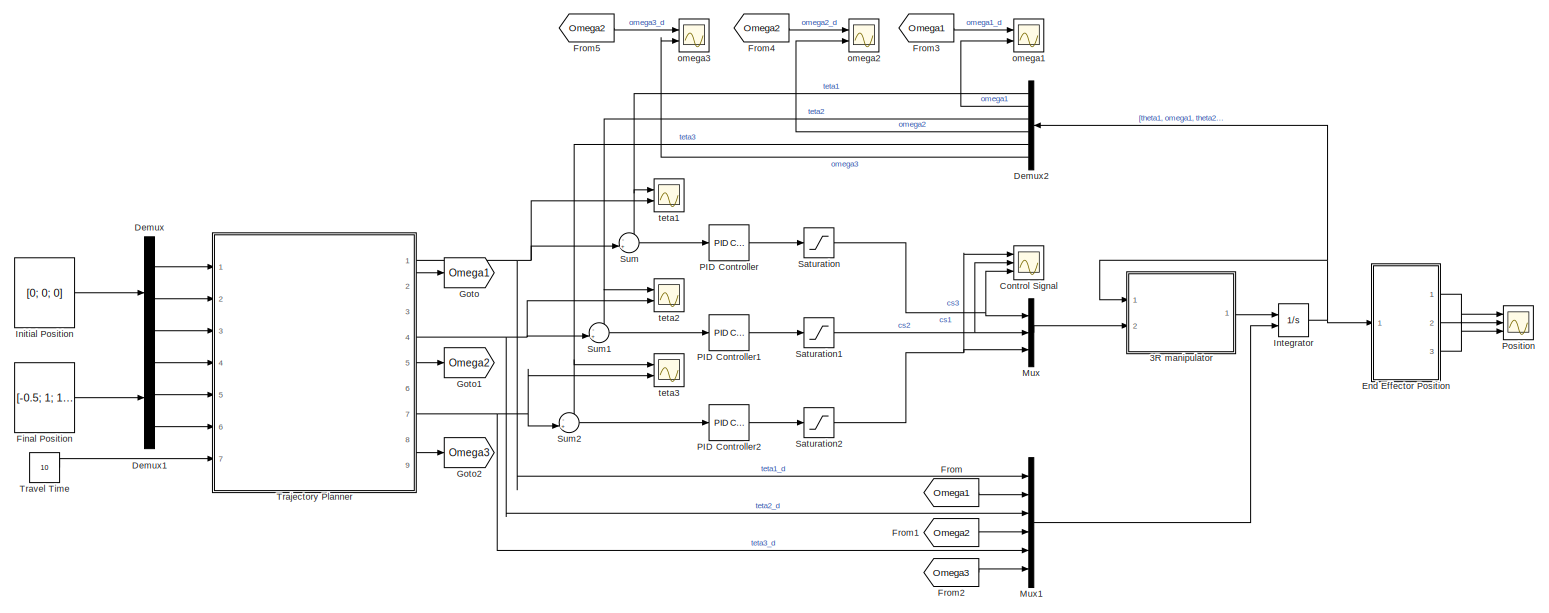
[diagram: root canvas - part 1/1, most of the canvas]
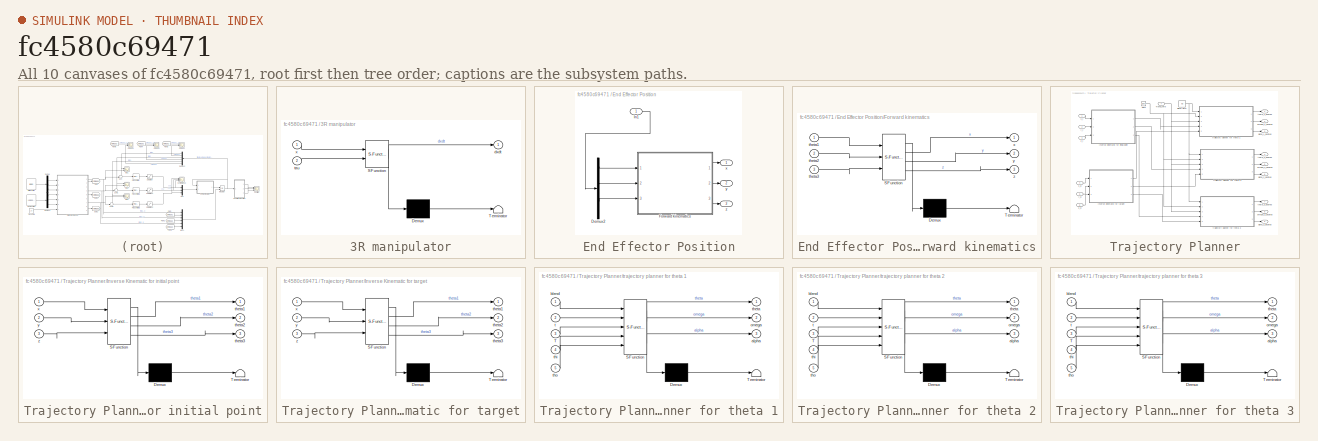
[diagram: thumbnail index - all 10 canvases of the model, root first then tree order]
MODEL slx_fc4580c69471
KIND model
CONFIG AbsTol = auto
CONFIG EnableMultiTasking = off
CONFIG FixedStep = auto
CONFIG MaxStep = auto
CONFIG MinStep = auto
CONFIG RelTol = 1e-3
CONFIG SampleTimeConstraint = Unconstrained
CONFIG Solver = VariableStepAuto
CONFIG SolverName = VariableStepAuto
CONFIG StartTime = 0.0
CONFIG StopTime = 10
BLOCK [SubSystem] 3R manipulator
  ErrorFcn = Stateflow.Translate.translate
  PermitHierarchicalResolution = ExplicitOnly
  Ports = [2, 1]
  RequestExecContextInheritance = off
  SFBlockType = MATLAB Function
  TreatAsAtomicUnit = on
BLOCK [Demux] 3R manipulator/ Demux 
  Outputs = 1
  Ports = [1, 1]
BLOCK [S-Function] 3R manipulator/ SFunction 
  EnableBusSupport = on
  FunctionName = sf_sfun
  PortCounts = [2 2]
  Ports = [2, 2]
  SFcnIsStateOwnerBlock = off
  SFunctionDeploymentMode = off
  Tag = Stateflow S-Function 2
BLOCK [Terminator] 3R manipulator/ Terminator 
BLOCK [Outport] 3R manipulator/dxdt
BLOCK [Inport] 3R manipulator/tau
  Port = 2
BLOCK [Inport] 3R manipulator/x
BLOCK [Scope] Control Signal
  Floating = off
  NumInputPorts = 3
  Ports = [3]
  ScopeSpecificationString = Simulink.scopes.TimeScopeBlockCfg('CurrentConfiguration', extmgr.ConfigurationSet(extmgr.Configuration('Core','General UI',true),extmgr.Configuration('Core','Source UI',true),extmgr.Configuration('Sources','WiredSimulink',true,'DataLoggingVariableName','ScopeData3'),extmgr.Configuration('Visuals','Time Domain',true,'SerializedDisplays',{struct('MinYLimReal','-12.5624','MaxYLimReal','3.83306','YLab...<+1425ch>
BLOCK [Demux] Demux
  Outputs = 3
  Ports = [1, 3]
BLOCK [Demux] Demux1
  Outputs = 3
  Ports = [1, 3]
BLOCK [Demux] Demux2
  NameLocation = top
  Outputs = 6
  Ports = [1, 6]
BLOCK [SubSystem] End Effector Position
  Ports = [1, 3]
  RequestExecContextInheritance = off
BLOCK [Demux] End Effector Position/Demux2
  Outputs = 6
  Ports = [1, 6]
BLOCK [SubSystem] End Effector Position/Forward kinematics
  ErrorFcn = Stateflow.Translate.translate
  PermitHierarchicalResolution = ExplicitOnly
  Ports = [3, 3]
  RequestExecContextInheritance = off
  SFBlockType = MATLAB Function
  TreatAsAtomicUnit = on
BLOCK [Demux] End Effector Position/Forward kinematics/ Demux 
  Outputs = 1
  Ports = [1, 1]
BLOCK [S-Function] End Effector Position/Forward kinematics/ SFunction 
  EnableBusSupport = on
  FunctionName = sf_sfun
  PortCounts = [3 4]
  Ports = [3, 4]
  SFcnIsStateOwnerBlock = off
  SFunctionDeploymentMode = off
  Tag = Stateflow S-Function 7
BLOCK [Terminator] End Effector Position/Forward kinematics/ Terminator 
BLOCK [Inport] End Effector Position/Forward kinematics/theta1
BLOCK [Inport] End Effector Position/Forward kinematics/theta2
  Port = 2
BLOCK [Inport] End Effector Position/Forward kinematics/theta3
  Port = 3
BLOCK [Outport] End Effector Position/Forward kinematics/x
BLOCK [Outport] End Effector Position/Forward kinematics/y
  Port = 2
BLOCK [Outport] End Effector Position/Forward kinematics/z
  Port = 3
BLOCK [Inport] End Effector Position/In1
BLOCK [Outport] End Effector Position/x
BLOCK [Outport] End Effector Position/y
  Port = 2
BLOCK [Outport] End Effector Position/z
  Port = 3
BLOCK [Constant] Final Position
  Value = [-0.5; 1; 1.5]
  VectorParams1D = off
BLOCK [From] From
  GotoTag = Omega1
BLOCK [From] From1
  GotoTag = Omega2
BLOCK [From] From2
  GotoTag = Omega3
BLOCK [From] From3
  GotoTag = Omega1
BLOCK [From] From4
  GotoTag = Omega2
BLOCK [From] From5
  GotoTag = Omega2
BLOCK [Goto] Goto
  GotoTag = Omega1
BLOCK [Goto] Goto1
  GotoTag = Omega2
BLOCK [Goto] Goto2
  GotoTag = Omega3
BLOCK [Constant] Initial Position
  Value = [0; 0; 0]
  VectorParams1D = off
BLOCK [Integrator] Integrator
  InitialConditionSource = external
  Ports = [2, 1]
BLOCK [Mux] Mux
  DisplayOption = bar
  Inputs = 3
  Ports = [3, 1]
BLOCK [Mux] Mux1
  DisplayOption = bar
  Inputs = 6
  Ports = [6, 1]
BLOCK [Reference] PID Controller  REF=simulink/Continuous/PID Controller
  Ports = [1, 1]
  SourceBlock = simulink/Continuous/PID Controller
  SourceProductBaseCode = SL
  SourceType = PID 1dof
BLOCK [Reference] PID Controller1  REF=simulink/Continuous/PID Controller
  Ports = [1, 1]
  SourceBlock = simulink/Continuous/PID Controller
  SourceProductBaseCode = SL
  SourceType = PID 1dof
BLOCK [Reference] PID Controller2  REF=simulink/Continuous/PID Controller
  Ports = [1, 1]
  SourceBlock = simulink/Continuous/PID Controller
  SourceProductBaseCode = SL
  SourceType = PID 1dof
BLOCK [Scope] Position
  Floating = off
  NumInputPorts = 3
  Ports = [3]
  ScopeSpecificationString = Simulink.scopes.TimeScopeBlockCfg('CurrentConfiguration', extmgr.ConfigurationSet(extmgr.Configuration('Core','General UI',true),extmgr.Configuration('Core','Source UI',true),extmgr.Configuration('Sources','WiredSimulink',true),extmgr.Configuration('Visuals','Time Domain',true,'SerializedDisplays',{struct('MinYLimReal','-0.76512','MaxYLimReal','1.74834','YLabelReal','','MinYLimMag','0.00000','MaxY...<+1429ch>
BLOCK [Saturate] Saturation
  LowerLimit = -15
  UpperLimit = 15
BLOCK [Saturate] Saturation1
  LowerLimit = -15
  UpperLimit = 15
BLOCK [Saturate] Saturation2
  LowerLimit = -15
  UpperLimit = 15
BLOCK [Sum] Sum
  Inputs = -+|
  Ports = [2, 1]
BLOCK [Sum] Sum1
  Inputs = -+|
  Ports = [2, 1]
BLOCK [Sum] Sum2
  Inputs = -+|
  Ports = [2, 1]
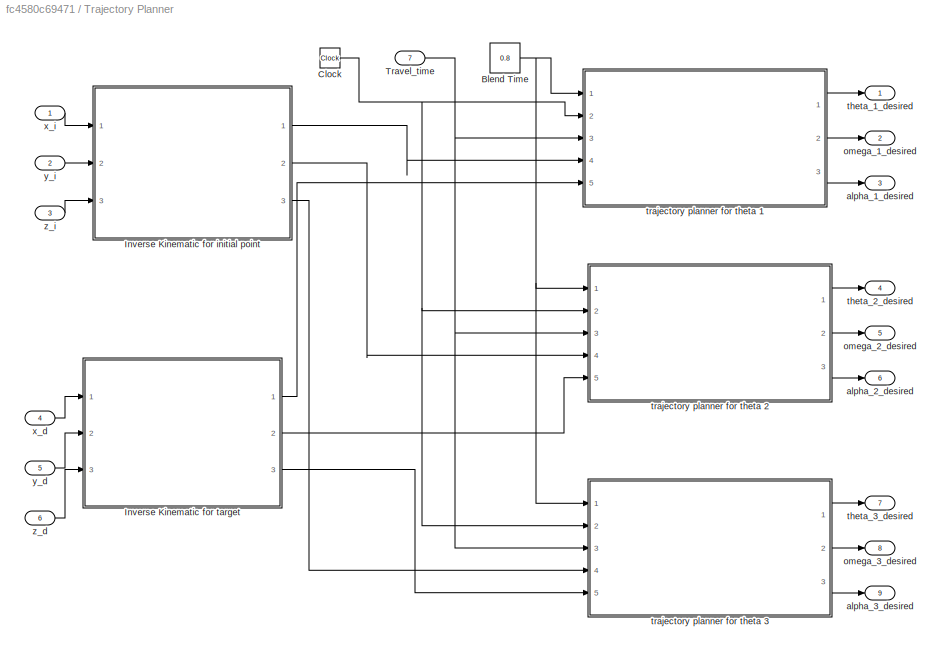
BLOCK [SubSystem] Trajectory Planner
  Ports = [7, 9]
  RequestExecContextInheritance = off
BLOCK [Constant] Trajectory Planner/Blend Time
  Value = 0.8
BLOCK [Clock] Trajectory Planner/Clock
BLOCK [SubSystem] Trajectory Planner/Inverse Kinematic for initial point
  ErrorFcn = Stateflow.Translate.translate
  PermitHierarchicalResolution = ExplicitOnly
  Ports = [3, 3]
  RequestExecContextInheritance = off
  SFBlockType = MATLAB Function
  TreatAsAtomicUnit = on
BLOCK [Demux] Trajectory Planner/Inverse Kinematic for initial point/ Demux 
  Outputs = 1
  Ports = [1, 1]
BLOCK [S-Function] Trajectory Planner/Inverse Kinematic for initial point/ SFunction 
  EnableBusSupport = on
  FunctionName = sf_sfun
  PortCounts = [3 4]
  Ports = [3, 4]
  SFcnIsStateOwnerBlock = off
  SFunctionDeploymentMode = off
  Tag = Stateflow S-Function 1
BLOCK [Terminator] Trajectory Planner/Inverse Kinematic for initial point/ Terminator 
BLOCK [Outport] Trajectory Planner/Inverse Kinematic for initial point/theta1
BLOCK [Outport] Trajectory Planner/Inverse Kinematic for initial point/theta2
  Port = 2
BLOCK [Outport] Trajectory Planner/Inverse Kinematic for initial point/theta3
  Port = 3
BLOCK [Inport] Trajectory Planner/Inverse Kinematic for initial point/x
BLOCK [Inport] Trajectory Planner/Inverse Kinematic for initial point/y
  Port = 2
BLOCK [Inport] Trajectory Planner/Inverse Kinematic for initial point/z
  Port = 3
BLOCK [SubSystem] Trajectory Planner/Inverse Kinematic for target
  ErrorFcn = Stateflow.Translate.translate
  PermitHierarchicalResolution = ExplicitOnly
  Ports = [3, 3]
  RequestExecContextInheritance = off
  SFBlockType = MATLAB Function
  TreatAsAtomicUnit = on
BLOCK [Demux] Trajectory Planner/Inverse Kinematic for target/ Demux 
  Outputs = 1
  Ports = [1, 1]
BLOCK [S-Function] Trajectory Planner/Inverse Kinematic for target/ SFunction 
  EnableBusSupport = on
  FunctionName = sf_sfun
  PortCounts = [3 4]
  Ports = [3, 4]
  SFcnIsStateOwnerBlock = off
  SFunctionDeploymentMode = off
  Tag = Stateflow S-Function 6
BLOCK [Terminator] Trajectory Planner/Inverse Kinematic for target/ Terminator 
BLOCK [Outport] Trajectory Planner/Inverse Kinematic for target/theta1
BLOCK [Outport] Trajectory Planner/Inverse Kinematic for target/theta2
  Port = 2
BLOCK [Outport] Trajectory Planner/Inverse Kinematic for target/theta3
  Port = 3
BLOCK [Inport] Trajectory Planner/Inverse Kinematic for target/x
BLOCK [Inport] Trajectory Planner/Inverse Kinematic for target/y
  Port = 2
BLOCK [Inport] Trajectory Planner/Inverse Kinematic for target/z
  Port = 3
BLOCK [Inport] Trajectory Planner/Travel_time
  Port = 7
BLOCK [Outport] Trajectory Planner/alpha_1_desired
  Port = 3
BLOCK [Outport] Trajectory Planner/alpha_2_desired
  Port = 6
BLOCK [Outport] Trajectory Planner/alpha_3_desired
  Port = 9
BLOCK [Outport] Trajectory Planner/omega_1_desired
  Port = 2
BLOCK [Outport] Trajectory Planner/omega_2_desired
  Port = 5
BLOCK [Outport] Trajectory Planner/omega_3_desired
  Port = 8
BLOCK [Outport] Trajectory Planner/theta_1_desired
BLOCK [Outport] Trajectory Planner/theta_2_desired
  Port = 4
BLOCK [Outport] Trajectory Planner/theta_3_desired
  Port = 7
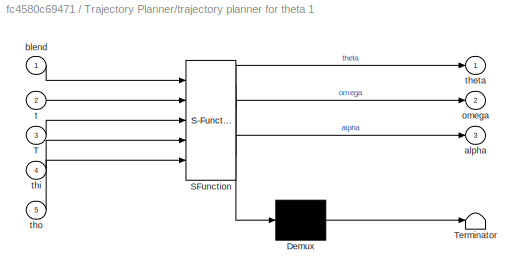
BLOCK [SubSystem] Trajectory Planner/trajectory planner for theta 1
  ErrorFcn = Stateflow.Translate.translate
  PermitHierarchicalResolution = ExplicitOnly
  Ports = [5, 3]
  RequestExecContextInheritance = off
  SFBlockType = MATLAB Function
  TreatAsAtomicUnit = on
BLOCK [Demux] Trajectory Planner/trajectory planner for theta 1/ Demux 
  Outputs = 1
  Ports = [1, 1]
BLOCK [S-Function] Trajectory Planner/trajectory planner for theta 1/ SFunction 
  EnableBusSupport = on
  FunctionName = sf_sfun
  PortCounts = [5 4]
  Ports = [5, 4]
  SFcnIsStateOwnerBlock = off
  SFunctionDeploymentMode = off
  Tag = Stateflow S-Function 3
BLOCK [Terminator] Trajectory Planner/trajectory planner for theta 1/ Terminator 
BLOCK [Inport] Trajectory Planner/trajectory planner for theta 1/T
  Port = 3
BLOCK [Outport] Trajectory Planner/trajectory planner for theta 1/alpha
  Port = 3
BLOCK [Inport] Trajectory Planner/trajectory planner for theta 1/blend
BLOCK [Outport] Trajectory Planner/trajectory planner for theta 1/omega
  Port = 2
BLOCK [Inport] Trajectory Planner/trajectory planner for theta 1/t
  Port = 2
BLOCK [Outport] Trajectory Planner/trajectory planner for theta 1/theta
BLOCK [Inport] Trajectory Planner/trajectory planner for theta 1/thi
  Port = 4
BLOCK [Inport] Trajectory Planner/trajectory planner for theta 1/tho
  Port = 5
BLOCK [SubSystem] Trajectory Planner/trajectory planner for theta 2
  ErrorFcn = Stateflow.Translate.translate
  PermitHierarchicalResolution = ExplicitOnly
  Ports = [5, 3]
  RequestExecContextInheritance = off
  SFBlockType = MATLAB Function
  TreatAsAtomicUnit = on
BLOCK [Demux] Trajectory Planner/trajectory planner for theta 2/ Demux 
  Outputs = 1
  Ports = [1, 1]
BLOCK [S-Function] Trajectory Planner/trajectory planner for theta 2/ SFunction 
  EnableBusSupport = on
  FunctionName = sf_sfun
  PortCounts = [5 4]
  Ports = [5, 4]
  SFcnIsStateOwnerBlock = off
  SFunctionDeploymentMode = off
  Tag = Stateflow S-Function 4
BLOCK [Terminator] Trajectory Planner/trajectory planner for theta 2/ Terminator 
BLOCK [Inport] Trajectory Planner/trajectory planner for theta 2/T
  Port = 3
BLOCK [Outport] Trajectory Planner/trajectory planner for theta 2/alpha
  Port = 3
BLOCK [Inport] Trajectory Planner/trajectory planner for theta 2/blend
BLOCK [Outport] Trajectory Planner/trajectory planner for theta 2/omega
  Port = 2
BLOCK [Inport] Trajectory Planner/trajectory planner for theta 2/t
  Port = 2
BLOCK [Outport] Trajectory Planner/trajectory planner for theta 2/theta
BLOCK [Inport] Trajectory Planner/trajectory planner for theta 2/thi
  Port = 4
BLOCK [Inport] Trajectory Planner/trajectory planner for theta 2/tho
  Port = 5
BLOCK [SubSystem] Trajectory Planner/trajectory planner for theta 3
  ErrorFcn = Stateflow.Translate.translate
  PermitHierarchicalResolution = ExplicitOnly
  Ports = [5, 3]
  RequestExecContextInheritance = off
  SFBlockType = MATLAB Function
  TreatAsAtomicUnit = on
BLOCK [Demux] Trajectory Planner/trajectory planner for theta 3/ Demux 
  Outputs = 1
  Ports = [1, 1]
BLOCK [S-Function] Trajectory Planner/trajectory planner for theta 3/ SFunction 
  EnableBusSupport = on
  FunctionName = sf_sfun
  PortCounts = [5 4]
  Ports = [5, 4]
  SFcnIsStateOwnerBlock = off
  SFunctionDeploymentMode = off
  Tag = Stateflow S-Function 5
BLOCK [Terminator] Trajectory Planner/trajectory planner for theta 3/ Terminator 
BLOCK [Inport] Trajectory Planner/trajectory planner for theta 3/T
  Port = 3
BLOCK [Outport] Trajectory Planner/trajectory planner for theta 3/alpha
  Port = 3
BLOCK [Inport] Trajectory Planner/trajectory planner for theta 3/blend
BLOCK [Outport] Trajectory Planner/trajectory planner for theta 3/omega
  Port = 2
BLOCK [Inport] Trajectory Planner/trajectory planner for theta 3/t
  Port = 2
BLOCK [Outport] Trajectory Planner/trajectory planner for theta 3/theta
BLOCK [Inport] Trajectory Planner/trajectory planner for theta 3/thi
  Port = 4
BLOCK [Inport] Trajectory Planner/trajectory planner for theta 3/tho
  Port = 5
BLOCK [Inport] Trajectory Planner/x_d
  Port = 4
BLOCK [Inport] Trajectory Planner/x_i
BLOCK [Inport] Trajectory Planner/y_d
  Port = 5
BLOCK [Inport] Trajectory Planner/y_i
  Port = 2
BLOCK [Inport] Trajectory Planner/z_d
  Port = 6
BLOCK [Inport] Trajectory Planner/z_i
  Port = 3
BLOCK [Constant] Travel Time 
  Value = 10
BLOCK [Scope] omega1
  Floating = off
  NumInputPorts = 2
  Ports = [2]
  ScopeSpecificationString = Simulink.scopes.TimeScopeBlockCfg('CurrentConfiguration', extmgr.ConfigurationSet(extmgr.Configuration('Core','General UI',true),extmgr.Configuration('Core','Source UI',true),extmgr.Configuration('Sources','WiredSimulink',true,'DataLoggingVariableName','ScopeData1'),extmgr.Configuration('Visuals','Time Domain',true,'SerializedDisplays',{struct('MinYLimReal','-0.02789','MaxYLimReal','0.25103','YLab...<+1411ch>
BLOCK [Scope] omega2
  Floating = off
  NumInputPorts = 2
  Ports = [2]
  ScopeSpecificationString = Simulink.scopes.TimeScopeBlockCfg('CurrentConfiguration', extmgr.ConfigurationSet(extmgr.Configuration('Core','General UI',true),extmgr.Configuration('Core','Source UI',true),extmgr.Configuration('Sources','WiredSimulink',true,'DataLoggingVariableName','ScopeData2'),extmgr.Configuration('Visuals','Time Domain',true,'SerializedDisplays',{struct('MinYLimReal','-0.0127','MaxYLimReal','0.11428','YLabe...<+1409ch>
BLOCK [Scope] omega3
  Floating = off
  NumInputPorts = 2
  Ports = [2]
  ScopeSpecificationString = Simulink.scopes.TimeScopeBlockCfg('CurrentConfiguration', extmgr.ConfigurationSet(extmgr.Configuration('Core','General UI',true),extmgr.Configuration('Core','Source UI',true),extmgr.Configuration('Sources','WiredSimulink',true,'DataLoggingVariableName','ScopeData3'),extmgr.Configuration('Visuals','Time Domain',true,'SerializedDisplays',{struct('MinYLimReal','-0.02159','MaxYLimReal','0.19433','YLab...<+1409ch>
BLOCK [Scope] teta1
  Floating = off
  NumInputPorts = 2
  Ports = [2]
  ScopeSpecificationString = Simulink.scopes.TimeScopeBlockCfg('CurrentConfiguration', extmgr.ConfigurationSet(extmgr.Configuration('Core','General UI',true),extmgr.Configuration('Core','Source UI',true),extmgr.Configuration('Sources','WiredSimulink',true,'DataLoggingVariableName','ScopeData2'),extmgr.Configuration('Visuals','Time Domain',true,'SerializedDisplays',{struct('MinYLimReal','-0.25589','MaxYLimReal','2.30304','YLab...<+1409ch>
BLOCK [Scope] teta2
  Floating = off
  NumInputPorts = 2
  Ports = [2]
  ScopeSpecificationString = Simulink.scopes.TimeScopeBlockCfg('CurrentConfiguration', extmgr.ConfigurationSet(extmgr.Configuration('Core','General UI',true),extmgr.Configuration('Core','Source UI',true),extmgr.Configuration('Sources','WiredSimulink',true,'DataLoggingVariableName','ScopeData1'),extmgr.Configuration('Visuals','Time Domain',true,'SerializedDisplays',{struct('MinYLimReal','-2.07473','MaxYLimReal','-0.56809','YLa...<+1471ch>
BLOCK [Scope] teta3
  Floating = off
  NumInputPorts = 2
  Ports = [2]
  ScopeSpecificationString = Simulink.scopes.TimeScopeBlockCfg('CurrentConfiguration', extmgr.ConfigurationSet(extmgr.Configuration('Core','General UI',true),extmgr.Configuration('Core','Source UI',true),extmgr.Configuration('Sources','WiredSimulink',true,'DataLoggingVariableName','ScopeData1'),extmgr.Configuration('Visuals','Time Domain',true,'SerializedDisplays',{struct('MinYLimReal','-0.18293','MaxYLimReal','1.64638','YLab...<+1409ch>
LINE 3R manipulator:1 -> Integrator:1
LINE Demux1:1 -> Trajectory Planner:4
LINE Demux1:2 -> Trajectory Planner:5
LINE Demux1:3 -> Trajectory Planner:6
NET Demux2:1 -> Sum:1, teta1:1
LINE Demux2:2 -> omega1:2
NET Demux2:3 -> Sum1:1, teta2:1
LINE Demux2:4 -> omega2:2
NET Demux2:5 -> Sum2:1, teta3:1
LINE Demux2:6 -> omega3:2
LINE Demux:1 -> Trajectory Planner:1
LINE Demux:2 -> Trajectory Planner:2
LINE Demux:3 -> Trajectory Planner:3
LINE End Effector Position/Demux2:1 -> End Effector Position/Forward kinematics:1
LINE End Effector Position/Demux2:3 -> End Effector Position/Forward kinematics:2
LINE End Effector Position/Demux2:5 -> End Effector Position/Forward kinematics:3
LINE End Effector Position/Forward kinematics:1 -> End Effector Position/x:1
LINE End Effector Position/Forward kinematics:2 -> End Effector Position/y:1
LINE End Effector Position/Forward kinematics:3 -> End Effector Position/z:1
LINE End Effector Position/In1:1 -> End Effector Position/Demux2:1
LINE End Effector Position:1 -> Position:1
LINE End Effector Position:2 -> Position:2
LINE End Effector Position:3 -> Position:3
LINE Final Position:1 -> Demux1:1
LINE From1:1 -> Mux1:4
LINE From2:1 -> Mux1:6
LINE From3:1 -> omega1:1
LINE From4:1 -> omega2:1
LINE From5:1 -> omega3:1
LINE From:1 -> Mux1:2
LINE Initial Position:1 -> Demux:1
NET Integrator:1 -> 3R manipulator:1, Demux2:1, End Effector Position:1
LINE Mux1:1 -> Integrator:2
LINE Mux:1 -> 3R manipulator:2
LINE PID Controller1:1 -> Saturation1:1
LINE PID Controller2:1 -> Saturation2:1
LINE PID Controller:1 -> Saturation:1
NET Saturation1:1 -> Control Signal:2, Mux:2
NET Saturation2:1 -> Control Signal:1, Mux:3
NET Saturation:1 -> Control Signal:3, Mux:1
LINE Sum1:1 -> PID Controller1:1
LINE Sum2:1 -> PID Controller2:1
LINE Sum:1 -> PID Controller:1
NET Trajectory Planner/Blend Time:1 -> Trajectory Planner/trajectory planner for theta 1:1, Trajectory Planner/trajectory planner for theta 2:1, Trajectory Planner/trajectory planner for theta 3:1
NET Trajectory Planner/Clock:1 -> Trajectory Planner/trajectory planner for theta 1:2, Trajectory Planner/trajectory planner for theta 2:2, Trajectory Planner/trajectory planner for theta 3:2
LINE Trajectory Planner/Inverse Kinematic for initial point:1 -> Trajectory Planner/trajectory planner for theta 1:4
LINE Trajectory Planner/Inverse Kinematic for initial point:2 -> Trajectory Planner/trajectory planner for theta 2:4
LINE Trajectory Planner/Inverse Kinematic for initial point:3 -> Trajectory Planner/trajectory planner for theta 3:4
LINE Trajectory Planner/Inverse Kinematic for target:1 -> Trajectory Planner/trajectory planner for theta 1:5
LINE Trajectory Planner/Inverse Kinematic for target:2 -> Trajectory Planner/trajectory planner for theta 2:5
LINE Trajectory Planner/Inverse Kinematic for target:3 -> Trajectory Planner/trajectory planner for theta 3:5
NET Trajectory Planner/Travel_time:1 -> Trajectory Planner/trajectory planner for theta 1:3, Trajectory Planner/trajectory planner for theta 2:3, Trajectory Planner/trajectory planner for theta 3:3
LINE Trajectory Planner/trajectory planner for theta 1:1 -> Trajectory Planner/theta_1_desired:1
LINE Trajectory Planner/trajectory planner for theta 1:2 -> Trajectory Planner/omega_1_desired:1
LINE Trajectory Planner/trajectory planner for theta 1:3 -> Trajectory Planner/alpha_1_desired:1
LINE Trajectory Planner/trajectory planner for theta 2:1 -> Trajectory Planner/theta_2_desired:1
LINE Trajectory Planner/trajectory planner for theta 2:2 -> Trajectory Planner/omega_2_desired:1
LINE Trajectory Planner/trajectory planner for theta 2:3 -> Trajectory Planner/alpha_2_desired:1
LINE Trajectory Planner/trajectory planner for theta 3:1 -> Trajectory Planner/theta_3_desired:1
LINE Trajectory Planner/trajectory planner for theta 3:2 -> Trajectory Planner/omega_3_desired:1
LINE Trajectory Planner/trajectory planner for theta 3:3 -> Trajectory Planner/alpha_3_desired:1
LINE Trajectory Planner/x_d:1 -> Trajectory Planner/Inverse Kinematic for target:1
LINE Trajectory Planner/x_i:1 -> Trajectory Planner/Inverse Kinematic for initial point:1
LINE Trajectory Planner/y_d:1 -> Trajectory Planner/Inverse Kinematic for target:2
LINE Trajectory Planner/y_i:1 -> Trajectory Planner/Inverse Kinematic for initial point:2
LINE Trajectory Planner/z_d:1 -> Trajectory Planner/Inverse Kinematic for target:3
LINE Trajectory Planner/z_i:1 -> Trajectory Planner/Inverse Kinematic for initial point:3
NET Trajectory Planner:1 -> Mux1:1, Sum:2, teta1:2
LINE Trajectory Planner:2 -> Goto:1
NET Trajectory Planner:4 -> Mux1:3, Sum1:2, teta2:2
LINE Trajectory Planner:5 -> Goto1:1
NET Trajectory Planner:7 -> Mux1:5, Sum2:2, teta3:2
LINE Trajectory Planner:8 -> Goto2:1
LINE Travel Time :1 -> Trajectory Planner:7
note: NET lines group one-source signal fan-out (src -> all destinations, sorted); 1:1 wires keep LINE
CHART Trajectory Planner/Inverse Kinematic for initial point states=1 transitions=1
  STATE_LABEL 'eML_blk_kernel()'
  STATE_LABEL 'SCRIPT:\nfunction [theta1, theta2, theta3] = inverse_kinematic(x, y, z)\n\nL1=1.5; L2=0.8; L3=0.7;\ntheta1 = atan2(y, x);\ntheta3 = acos((x^2+y^2+(z-L1)^2-L2^2-L3^2)/(2*L2*L3));\nphi = atan2(L3*sin(theta3), L3*cos(theta3)+L2);\ndisp(phi/pi*180)\ntheta2 = asin((z-L1)*cos(phi)/(L3*cos(theta3)+L2))-phi;\n\nend'
CHART 3R manipulator states=1 transitions=1
  STATE_LABEL 'eML_blk_kernel()'
  STATE_LABEL 'SCRIPT:\n\nfunction dxdt = Plant_3R (x, tau)\nth1 = x(1);\nth1_d = x(2);\nth2 = x(3);\nth2_d = x(4);\nth3 = x(5);\nth3_d = x(6);\ndxdt = zeros(6,1);\ndxdt(1) = th1_d;\ndxdt(2) = (2.4e+3*tau(1)-670.0*th1_d*th2_d*sin(th3)+...\n    290.0*th1_d*th2_d*sin(2.0*th2+2.0*th3)+...\n    290.0*th1_d*th3_d*sin(2.0*th2+2.0*th3)+...\n    670.0*th1_d*th2_d*sin(2.0*th2+th3)+...\n    380.0*th1_d*th2_d*sin(2.0*th2))/(340.0*cos(2.0...<+495ch>'
CHART Trajectory Planner/trajectory planner for theta 1 states=1 transitions=1
  STATE_LABEL 'eML_blk_kernel()'
  STATE_LABEL 'SCRIPT:\nfunction [theta, omega, alpha] = trajectory_planner(blend, t, T, thi, tho)\n%t is the current time\n%T is the toal time of the movement. \n%thi is the initial angle\n%tho is the target angle\n% blend = 1;\n\nV_max = (tho-thi)/(T-blend);\na = V_max/blend;\n\nif t<=blend\n    alpha = a;\n    omega = a*t;\n    theta = 1/2*a*t.^2+thi;\nelseif t<=(T-blend)\n    alpha = 0;\n    omega = V_max;\n    theta = 1/2*a*...<+205ch>'
CHART Trajectory Planner/trajectory planner for theta 2 states=1 transitions=1
  STATE_LABEL 'eML_blk_kernel()'
  STATE_LABEL 'SCRIPT:\nfunction [theta, omega, alpha] = trajectory_planner(blend, t, T, thi, tho)\n%t is the current time\n%T is the toal time of the movement. \n%thi is the initial angle\n%tho is the target angle\nblend = 1;\n\nV_max = (tho-thi)/(T-blend);\na = V_max/blend;\n\nif t<=blend\n    alpha = a;\n    omega = a*t;\n    theta = 1/2*a*t.^2+thi;\nelseif t<=(T-blend)\n    alpha = 0;\n    omega = V_max;\n    theta = 1/2*a*bl...<+203ch>'
CHART Trajectory Planner/trajectory planner for theta 3 states=1 transitions=1
  STATE_LABEL 'eML_blk_kernel()'
  STATE_LABEL 'SCRIPT:\nfunction [theta, omega, alpha] = trajectory_planner(blend, t, T, thi, tho)\n%t is the current time\n%T is the toal time of the movement. \n%thi is the initial angle\n%tho is the target angle\nblend = 1;\n\nV_max = (tho-thi)/(T-blend);\na = V_max/blend;\n\nif t<=blend\n    alpha = a;\n    omega = a*t;\n    theta = 1/2*a*t.^2+thi;\nelseif t<=(T-blend)\n    alpha = 0;\n    omega = V_max;\n    theta = 1/2*a*bl...<+203ch>'
CHART Trajectory Planner/Inverse Kinematic for target states=1 transitions=1
  STATE_LABEL 'eML_blk_kernel()'
  STATE_LABEL 'SCRIPT:\nfunction [theta1, theta2, theta3] = inverse_kinematic(x, y, z)\n\nL1=1.5; L2=0.8; L3=0.7;\ntheta1 = atan2(y, x);\ntheta3 = acos((x^2+y^2+(z-L1)^2-L2^2-L3^2)/(2*L2*L3));\nphi = atan2(L3*sin(theta3), L3*cos(theta3)+L2);\ndisp(phi/pi*180)\ntheta2 = asin((z-L1)*cos(phi)/(L3*cos(theta3)+L2))-phi;\n\nend'
CHART End Effector Position/Forward kinematics states=1 transitions=1
  STATE_LABEL 'eML_blk_kernel()'
  STATE_LABEL 'SCRIPT:\nfunction [x, y, z] = fcn(theta1, theta2, theta3)\nL1=1.5; L2=0.8; L3=0.7;T_01 = [cos(theta1) -sin(theta1) 0  0;\n        sin(theta1)  cos(theta1) 0  0;\n        0            0           1  0;\n        0            0           0  1];\n    \nT_12 = [cos(theta2) -sin(theta2) 0  0;\n        0            0          -1  0;\n        sin(theta2)  cos(theta2) 0  0;\n        0            0           0  1];\n ...<+409ch>'
CHART  states=0 transitions=0
CHART  states=0 transitions=0
CHART  states=0 transitions=0
CHART  states=0 transitions=0
CHART  states=0 transitions=0
CHART  states=0 transitions=0
CHART  states=0 transitions=0
